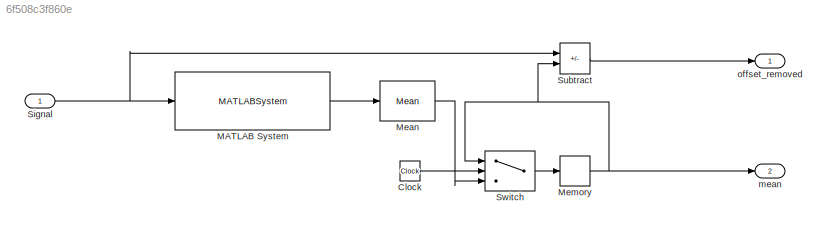
MODEL slx_6f508c3f860e
KIND model
CONFIG AbsTol = auto
CONFIG EnableMultiTasking = off
CONFIG FixedStep = 0.0001
CONFIG MaxStep = auto
CONFIG MinStep = auto
CONFIG RelTol = 1e-3
CONFIG SampleTimeConstraint = Unconstrained
CONFIG SolverName = FixedStepAuto
CONFIG StartTime = 0.0
CONFIG StopTime = 100
BLOCK [Clock] Clock
BLOCK [MATLABSystem] MATLAB System
  BufferLength = circularBufferSize
  InitialCondition = 0
  MaskDisplay = disp('CircularBuffer');\nport_label('input',1,'signal');\nport_label('output',1,'out');
  MaskType = CircularBuffer
  SimulateUsing = Code generation
  System = CircularBuffer
BLOCK [Reference] Mean  REF=dspstat3/Mean
  SourceBlock = dspstat3/Mean
  SourceType = Mean
  UserDataPersistent = on
BLOCK [Memory] Memory
BLOCK [Inport] Signal
  Interpolate = off
  PortDimensions = 1
BLOCK [Sum] Subtract
  IconShape = rectangular
  Inputs = +-
BLOCK [Switch] Switch
  Criteria = u2 > Threshold
  InputSameDT = off
  SaturateOnIntegerOverflow = off
  Threshold = 1
BLOCK [Outport] mean
  Port = 2
BLOCK [Outport] offset_removed
LINE Clock:1 -> Switch:2
LINE MATLAB System:1 -> Mean:1
LINE Mean:1 -> Switch:3
NET Memory:1 -> Subtract:2, Switch:1, mean:1
NET Signal:1 -> MATLAB System:1, Subtract:1
LINE Subtract:1 -> offset_removed:1
LINE Switch:1 -> Memory:1
note: NET lines group one-source signal fan-out (src -> all destinations, sorted); 1:1 wires keep LINE
